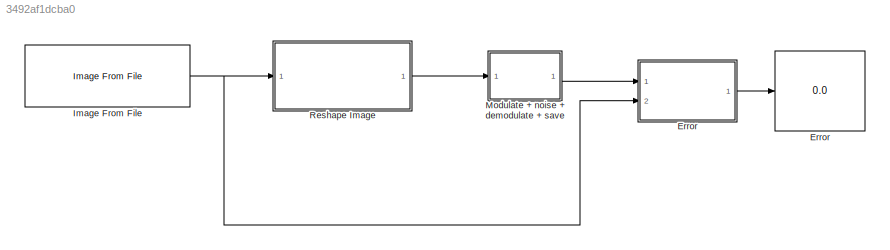
MODEL slx_3492af1dcba0
KIND model
CONFIG AbsTol = auto
CONFIG EnableMultiTasking = off
CONFIG FixedStep = auto
CONFIG MaxStep = auto
CONFIG MinStep = auto
CONFIG RelTol = 1e-3
CONFIG SampleTimeConstraint = Unconstrained
CONFIG Solver = VariableStepAuto
CONFIG SolverName = VariableStepAuto
CONFIG StartTime = 0.0
CONFIG StopTime = 10.0
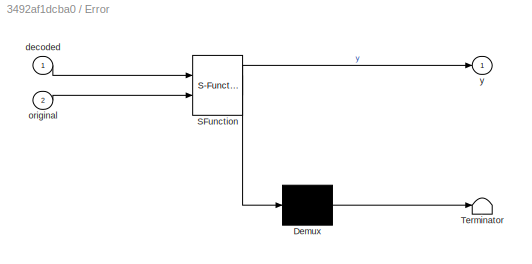
BLOCK [SubSystem] Error
  ErrorFcn = Stateflow.Translate.translate
  PermitHierarchicalResolution = ExplicitOnly
  Ports = [2, 1]
  RequestExecContextInheritance = off
  SFBlockType = MATLAB Function
  TreatAsAtomicUnit = on
BLOCK [Display] Error 
  Decimation = 1
  Ports = [1]
BLOCK [Demux] Error/ Demux 
  Outputs = 1
  Ports = [1, 1]
BLOCK [S-Function] Error/ SFunction 
  EnableBusSupport = on
  FunctionName = sf_sfun
  PortCounts = [2 2]
  Ports = [2, 2]
  SFcnIsStateOwnerBlock = off
  SFunctionDeploymentMode = off
  Tag = Stateflow S-Function qam 3
BLOCK [Terminator] Error/ Terminator 
BLOCK [Inport] Error/decoded
  IconDisplay = Port number
BLOCK [Inport] Error/original
  IconDisplay = Port number
  Port = 2
BLOCK [Outport] Error/y
  IconDisplay = Port number
BLOCK [Reference] Image From File  REF=visionsources/Image From File
  Ports = [0, 1]
  SourceBlock = visionsources/Image From File
  SourceProductBaseCode = VP
  SourceProductName = Computer Vision Toolbox
  SourceType = Image From File
  Tag = vipblks_nd
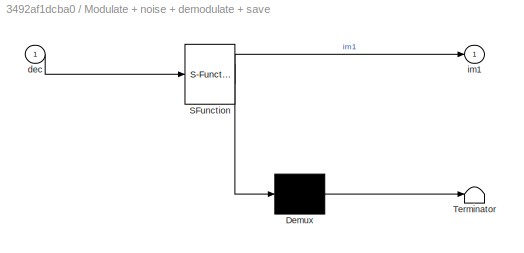
BLOCK [SubSystem] Modulate + noise + demodulate + save 
  ErrorFcn = Stateflow.Translate.translate
  PermitHierarchicalResolution = ExplicitOnly
  Ports = [1, 1]
  RequestExecContextInheritance = off
  SFBlockType = MATLAB Function
  TreatAsAtomicUnit = on
BLOCK [Demux] Modulate + noise + demodulate + save / Demux 
  Outputs = 1
  Ports = [1, 1]
BLOCK [S-Function] Modulate + noise + demodulate + save / SFunction 
  EnableBusSupport = on
  FunctionName = sf_sfun
  PortCounts = [1 2]
  Ports = [1, 2]
  SFcnIsStateOwnerBlock = off
  SFunctionDeploymentMode = off
  Tag = Stateflow S-Function qam 1
BLOCK [Terminator] Modulate + noise + demodulate + save / Terminator 
BLOCK [Inport] Modulate + noise + demodulate + save /dec
  IconDisplay = Port number
BLOCK [Outport] Modulate + noise + demodulate + save /im1
  IconDisplay = Port number
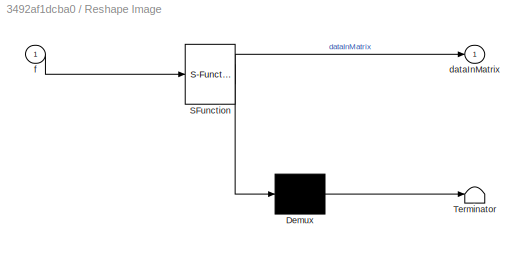
BLOCK [SubSystem] Reshape Image 
  ErrorFcn = Stateflow.Translate.translate
  PermitHierarchicalResolution = ExplicitOnly
  Ports = [1, 1]
  RequestExecContextInheritance = off
  SFBlockType = MATLAB Function
  TreatAsAtomicUnit = on
BLOCK [Demux] Reshape Image / Demux 
  Outputs = 1
  Ports = [1, 1]
BLOCK [S-Function] Reshape Image / SFunction 
  EnableBusSupport = on
  FunctionName = sf_sfun
  PortCounts = [1 2]
  Ports = [1, 2]
  SFcnIsStateOwnerBlock = off
  SFunctionDeploymentMode = off
  Tag = Stateflow S-Function qam 2
BLOCK [Terminator] Reshape Image / Terminator 
BLOCK [Outport] Reshape Image /dataInMatrix
  IconDisplay = Port number
BLOCK [Inport] Reshape Image /f
  IconDisplay = Port number
LINE Error:1 -> Error :1
NET Image From File:1 -> Error:2, Reshape Image :1
LINE Modulate + noise + demodulate + save :1 -> Error:1
LINE Reshape Image :1 -> Modulate + noise + demodulate + save :1
note: NET lines group one-source signal fan-out (src -> all destinations, sorted); 1:1 wires keep LINE
CHART Modulate 
+ 
noise 
+ 
demodulate 
+ 
save

 states=1 transitions=1
  STATE_LABEL 'eML_blk_kernel()'
  STATE_LABEL "SCRIPT:\nfunction im1 = fcn(dec)\nn = length(dec);\nout = zeros(n,1) + 1j*zeros(n,1);\nfor i =1:n\n    a = 0+ 1j*0;\n    if(bi2de(dec(i,1:3),'left-msb')==0)\n        a=a+ -7;\n    elseif(bi2de(dec(i,1:3),'left-msb')==1)\n             a=a+ -5;\n    elseif(bi2de(dec(i,1:3),'left-msb')==3)\n             a=a+ -3;\n    elseif(bi2de(dec(i,1:3),'left-msb')==2)\n             a=a+ -1;\n    elseif(bi2de(dec(i,1:3),'left-...<+2124ch>"
CHART Reshape Image
 states=1 transitions=1
  STATE_LABEL 'eML_blk_kernel()'
  STATE_LABEL "SCRIPT:\nfunction dataInMatrix = fcn(f)\nb = f(:)';\nif rem(length(b),6)~=0\n    b1 = [b zeros(1,6-rem(length(b),6))];\nend\ndataInMatrix = reshape(b1,[],6);\nend"
CHART Error states=1 transitions=1
  STATE_LABEL 'eML_blk_kernel()'
  STATE_LABEL 'SCRIPT:\nfunction y = fcn(decoded,original)\ncoder.extrinsic("mse");\ny = zeros(1,1);\ny = mse(decoded(:),original(:));\nend\n'
